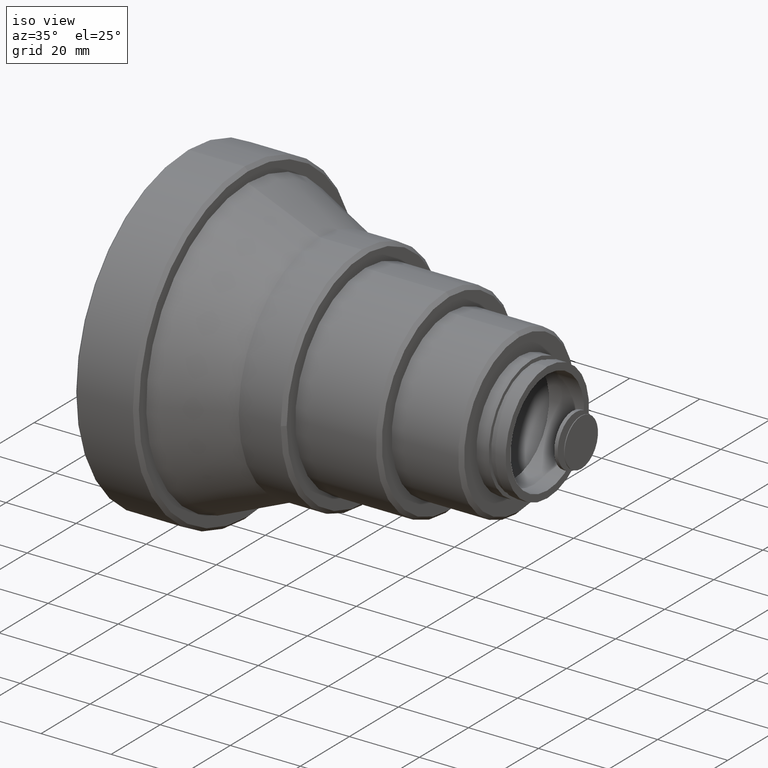
[diagram: clean part render]
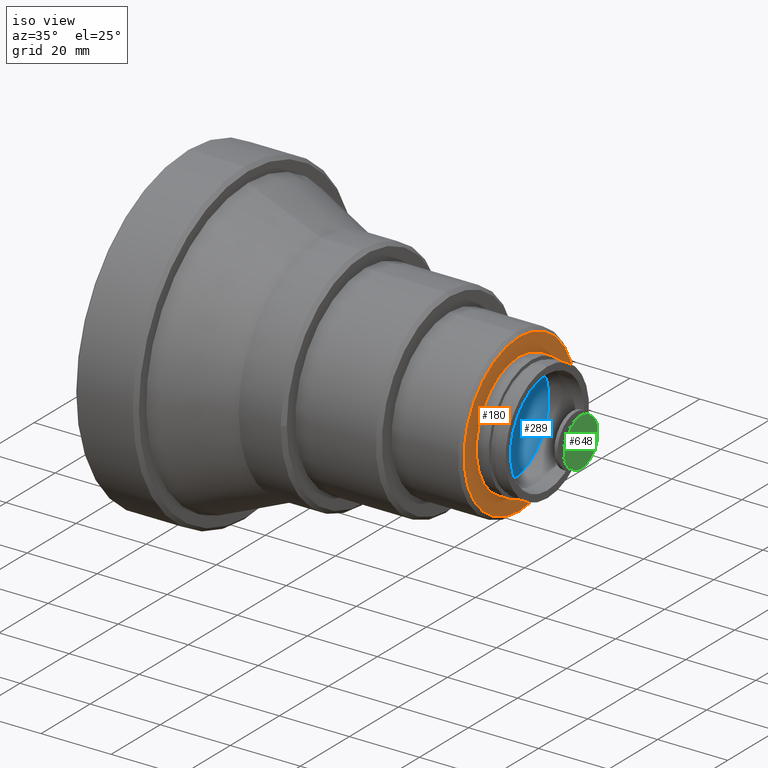
[diagram: same view with three faces highlighted in distinct colors, each labeled with its STEP entity id]
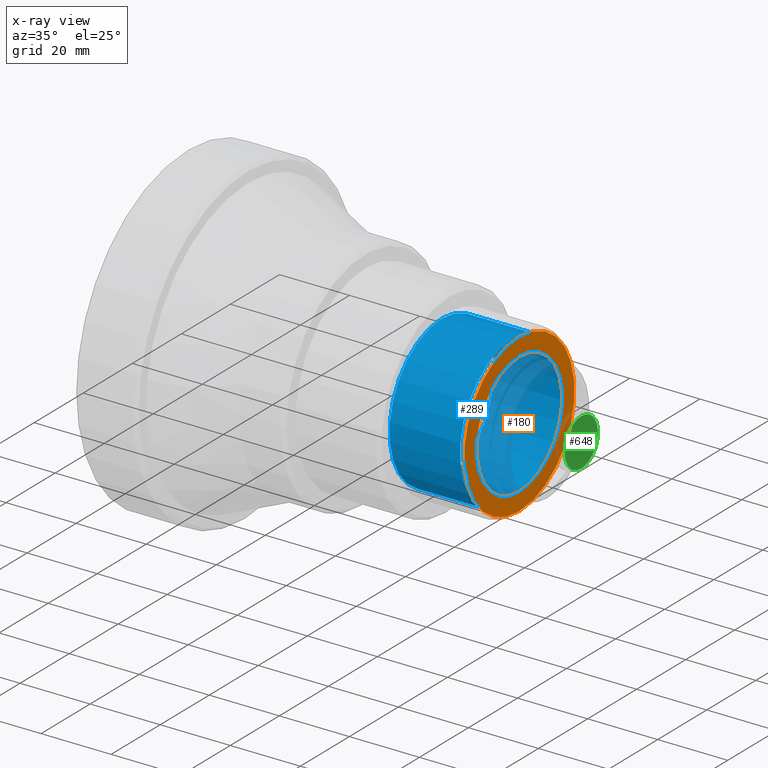
[diagram: x-ray of the same camera — body ghosted, the three highlighted faces saturated]
A machine part, iso view with three faces highlighted in distinct colors.
The next image is the same camera in x-ray (body ghosted, the three faces saturated) — at least one of them is partly hidden behind the body in this view.
Their STEP definitions:

[orange] entity #180 — the highlighted planar face has unit normal (-1, 0, 0).
#2 = DIRECTION ( 'NONE',  ( 0.000000000000000000, 0.000000000000000000, 1.000000000000000000 ) ) ;
#26 = VERTEX_POINT ( 'NONE', #799 ) ;
#39 = CIRCLE ( 'NONE', #157, 22.50000000000000000 ) ;
#52 = ORIENTED_EDGE ( 'NONE', *, *, #82, .F. ) ;
#82 = EDGE_CURVE ( 'NONE', #26, #26, #687, .T. ) ;
#83 = EDGE_LOOP ( 'NONE', ( #387 ) ) ;
#110 = VERTEX_POINT ( 'NONE', #368 ) ;
#129 = DIRECTION ( 'NONE',  ( 1.000000000000000000, 0.000000000000000000, 0.000000000000000000 ) ) ;
#157 = AXIS2_PLACEMENT_3D ( 'NONE', #768, #556, #350 ) ;
#180 = ADVANCED_FACE ( 'NONE', ( #259, #660 ), #526, .F. ) ;
#259 = FACE_BOUND ( 'NONE', #617, .T. ) ;
#350 = DIRECTION ( 'NONE',  ( 0.000000000000000000, 0.000000000000000000, 1.000000000000000000 ) ) ;
#368 = CARTESIAN_POINT ( 'NONE',  ( 92.49999999999988631, 0.000000000000000000, 22.50000000000000000 ) ) ;
#387 = ORIENTED_EDGE ( 'NONE', *, *, #531, .F. ) ;
#526 = PLANE ( 'NONE',  #818 ) ;
#531 = EDGE_CURVE ( 'NONE', #110, #110, #39, .T. ) ;
#536 = AXIS2_PLACEMENT_3D ( 'NONE', #652, #129, #734 ) ;
#556 = DIRECTION ( 'NONE',  ( -1.000000000000000000, 0.000000000000000000, 0.000000000000000000 ) ) ;
#597 = CARTESIAN_POINT ( 'NONE',  ( 92.49999999999988631, 17.50000000000000000, 0.000000000000000000 ) ) ;
#617 = EDGE_LOOP ( 'NONE', ( #52 ) ) ;
#652 = CARTESIAN_POINT ( 'NONE',  ( 92.49999999999988631, 0.000000000000000000, 0.000000000000000000 ) ) ;
#660 = FACE_OUTER_BOUND ( 'NONE', #83, .T. ) ;
#687 = CIRCLE ( 'NONE', #536, 17.50000000000000000 ) ;
#734 = DIRECTION ( 'NONE',  ( 0.000000000000000000, 0.000000000000000000, 1.000000000000000000 ) ) ;
#768 = CARTESIAN_POINT ( 'NONE',  ( 92.49999999999988631, 0.000000000000000000, 0.000000000000000000 ) ) ;
#792 = DIRECTION ( 'NONE',  ( -1.000000000000000000, 0.000000000000000000, 0.000000000000000000 ) ) ;
#799 = CARTESIAN_POINT ( 'NONE',  ( 92.49999999999988631, 0.000000000000000000, 17.50000000000000000 ) ) ;
#818 = AXIS2_PLACEMENT_3D ( 'NONE', #597, #792, #2 ) ;

[blue] entity #289 — the highlighted cylindrical surface (bore or boss wall) has radius 21.3 mm, axis along (-1, -0, -0).
#43 = CARTESIAN_POINT ( 'NONE',  ( 90.49999999999988631, 0.000000000000000000, 0.000000000000000000 ) ) ;
#79 = DIRECTION ( 'NONE',  ( 0.000000000000000000, 0.000000000000000000, 1.000000000000000000 ) ) ;
#86 = EDGE_LOOP ( 'NONE', ( #130 ) ) ;
#105 = DIRECTION ( 'NONE',  ( 0.000000000000000000, 0.000000000000000000, 1.000000000000000000 ) ) ;
#125 = CIRCLE ( 'NONE', #422, 21.30000092681467905 ) ;
#130 = ORIENTED_EDGE ( 'NONE', *, *, #563, .F. ) ;
#142 = CYLINDRICAL_SURFACE ( 'NONE', #325, 21.30000092681467905 ) ;
#184 = ORIENTED_EDGE ( 'NONE', *, *, #460, .T. ) ;
#251 = EDGE_LOOP ( 'NONE', ( #184 ) ) ;
#289 = ADVANCED_FACE ( 'NONE', ( #813, #478 ), #142, .F. ) ;
#297 = DIRECTION ( 'NONE',  ( 0.000000000000000000, 0.000000000000000000, 1.000000000000000000 ) ) ;
#307 = CARTESIAN_POINT ( 'NONE',  ( 70.36366899999995894, 0.000000000000000000, 21.30000092681467905 ) ) ;
#325 = AXIS2_PLACEMENT_3D ( 'NONE', #405, #672, #79 ) ;
#405 = CARTESIAN_POINT ( 'NONE',  ( 0.000000000000000000, 0.000000000000000000, 0.000000000000000000 ) ) ;
#422 = AXIS2_PLACEMENT_3D ( 'NONE', #43, #698, #105 ) ;
#425 = CARTESIAN_POINT ( 'NONE',  ( 70.36366899999995894, 0.000000000000000000, 0.000000000000000000 ) ) ;
#444 = VERTEX_POINT ( 'NONE', #307 ) ;
#460 = EDGE_CURVE ( 'NONE', #507, #507, #125, .T. ) ;
#461 = AXIS2_PLACEMENT_3D ( 'NONE', #425, #679, #297 ) ;
#478 = FACE_OUTER_BOUND ( 'NONE', #251, .T. ) ;
#507 = VERTEX_POINT ( 'NONE', #769 ) ;
#563 = EDGE_CURVE ( 'NONE', #444, #444, #840, .T. ) ;
#672 = DIRECTION ( 'NONE',  ( -1.000000000000000000, -0.000000000000000000, -0.000000000000000000 ) ) ;
#679 = DIRECTION ( 'NONE',  ( 1.000000000000000000, 0.000000000000000000, 0.000000000000000000 ) ) ;
#698 = DIRECTION ( 'NONE',  ( 1.000000000000000000, 0.000000000000000000, 0.000000000000000000 ) ) ;
#769 = CARTESIAN_POINT ( 'NONE',  ( 90.49999999999988631, 0.000000000000000000, 21.30000092681467905 ) ) ;
#813 = FACE_OUTER_BOUND ( 'NONE', #86, .T. ) ;
#840 = CIRCLE ( 'NONE', #461, 21.30000092681467905 ) ;

[green] entity #648 — the highlighted planar face has unit normal (-1, 0, 0).
#108 = CIRCLE ( 'NONE', #745, 6.799268999999997121 ) ;
#134 = DIRECTION ( 'NONE',  ( -1.000000000000000000, -0.000000000000000000, -0.000000000000000000 ) ) ;
#158 = DIRECTION ( 'NONE',  ( 0.000000000000000000, 0.000000000000000000, 1.000000000000000000 ) ) ;
#192 = EDGE_CURVE ( 'NONE', #583, #583, #108, .T. ) ;
#234 = FACE_OUTER_BOUND ( 'NONE', #528, .T. ) ;
#306 = DIRECTION ( 'NONE',  ( -1.000000000000000000, 0.000000000000000000, 0.000000000000000000 ) ) ;
#342 = ORIENTED_EDGE ( 'NONE', *, *, #192, .F. ) ;
#435 = CARTESIAN_POINT ( 'NONE',  ( 110.1999999999999034, 0.000000000000000000, 6.799268999999997121 ) ) ;
#474 = DIRECTION ( 'NONE',  ( 0.000000000000000000, 0.000000000000000000, 1.000000000000000000 ) ) ;
#528 = EDGE_LOOP ( 'NONE', ( #342 ) ) ;
#583 = VERTEX_POINT ( 'NONE', #435 ) ;
#634 = AXIS2_PLACEMENT_3D ( 'NONE', #829, #306, #158 ) ;
#648 = ADVANCED_FACE ( 'NONE', ( #234 ), #688, .F. ) ;
#688 = PLANE ( 'NONE',  #634 ) ;
#745 = AXIS2_PLACEMENT_3D ( 'NONE', #800, #134, #474 ) ;
#800 = CARTESIAN_POINT ( 'NONE',  ( 110.1999999999999034, 0.000000000000000000, 0.000000000000000000 ) ) ;
#829 = CARTESIAN_POINT ( 'NONE',  ( 110.1999999999999034, 0.000000000000000000, 0.000000000000000000 ) ) ;